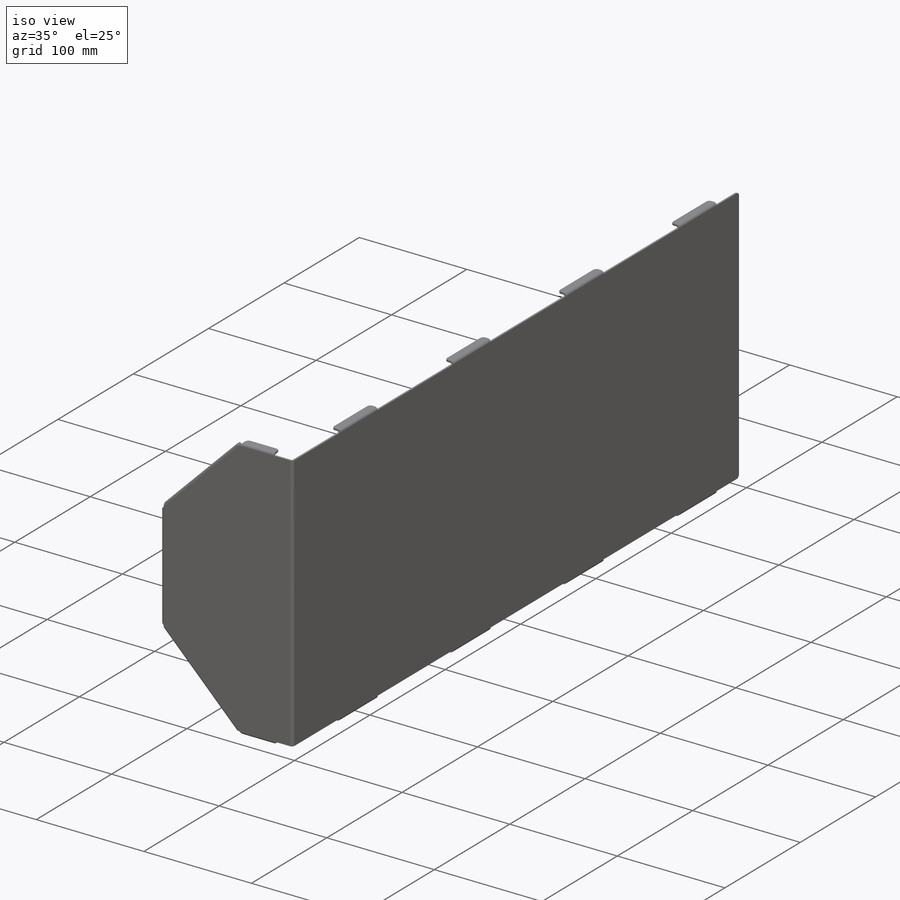
[diagram: iso view]
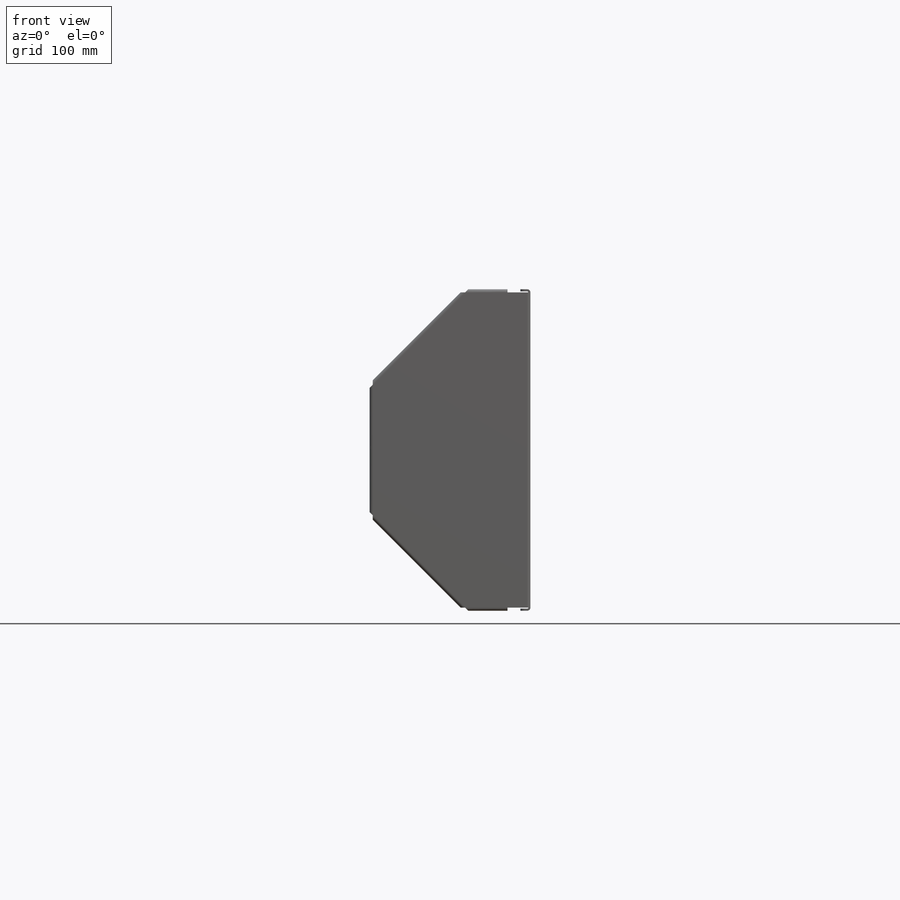
[diagram: front view]
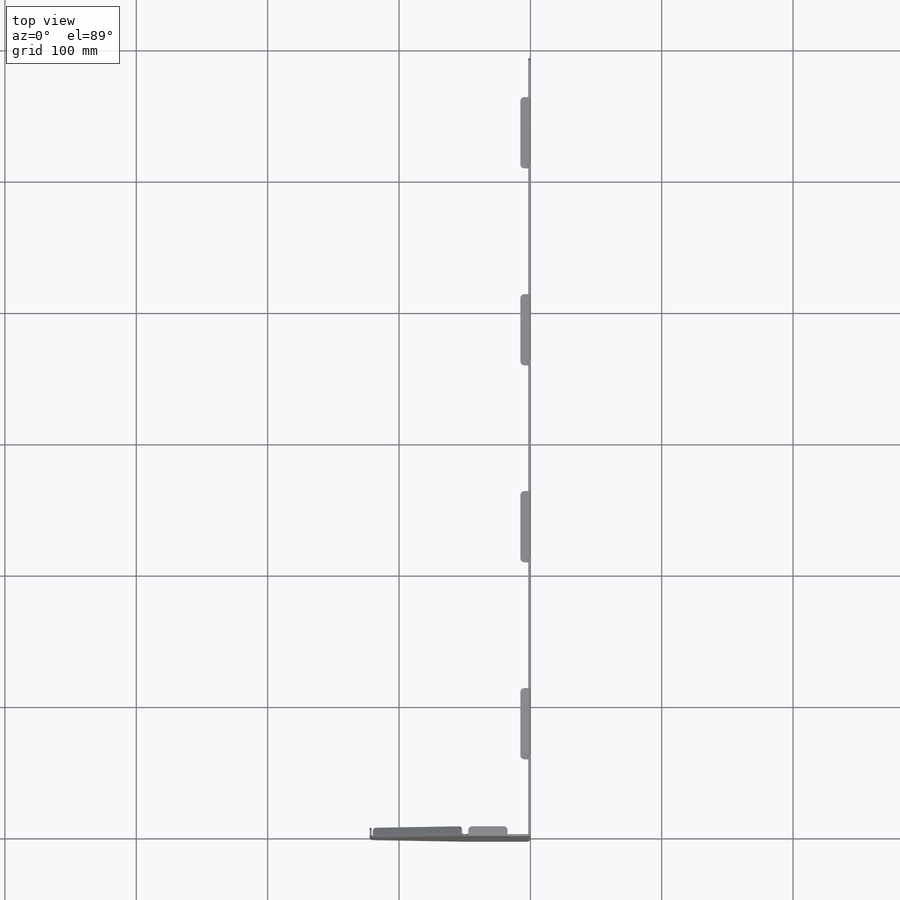
[diagram: top view]
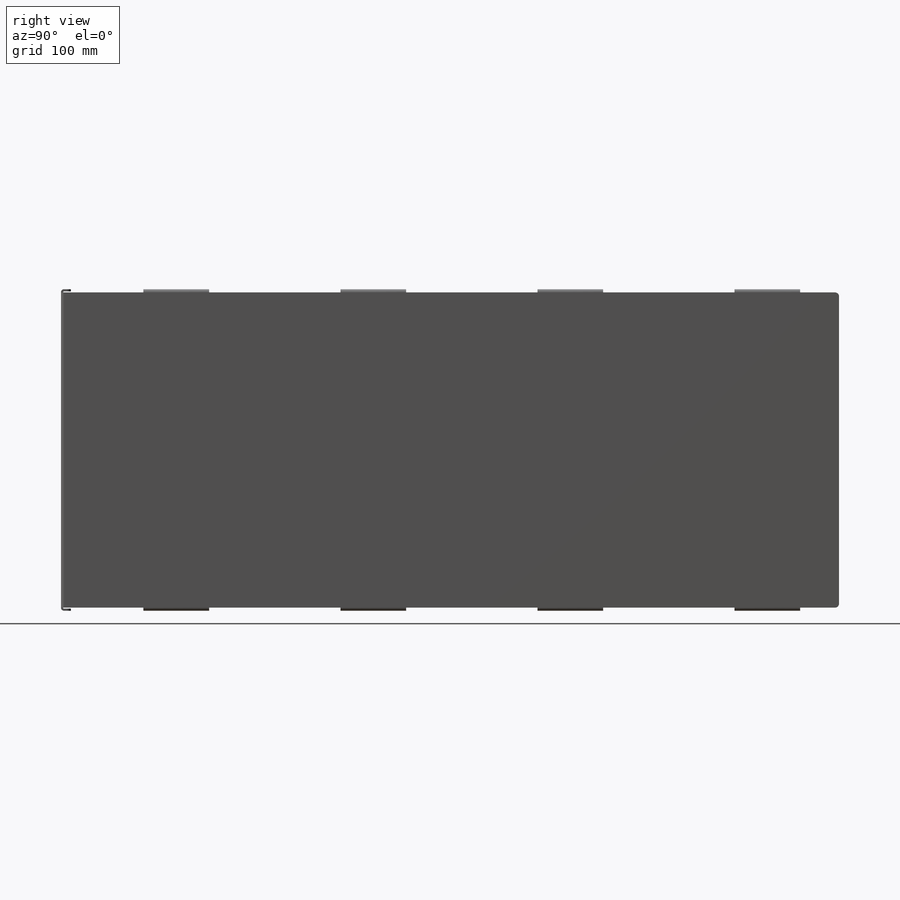
[diagram: right view]
SOLIDWORKS PART (.sldprt)
format: sldprt  version: not decoded by parser v0  size: 625,664 bytes
history: native  units: mm
features: sheet_metal_op x11, sketch x9, extrude x4, material x1, cut_extrude x1, plane x1, pattern_linear x1, mirror x1 + 15 further entries (+11 scaffold rows collapsed; 1 parser-record rows omitted)
feature tree (56):
  scaffold x11  (default folders/planes/origin — collapsed)
  material  "5052-O"
  sketch  "Sketch1"  dims[c1.D3=20.0mm c1.D4=70.0mm c1.D2=120.0mm c2.D4=150.0mm c2.D1=6.35mm c2.D2=3.175mm c2.D5=~7.247001mm c3.D4=0.5mm c3.D1=20.0mm]
  sheet_metal_op  "Sheet-Metal2"
  sheet_metal_op  "Base-Flange2"
  sketch  "Sketch22"  dims[c1.D1=0.8mm c1.D4=90.0deg c1.D5=12.0 c1.D8=~0.79375mm c1.D9=~0.79375mm c2.D1=0.8mm c2.D2=500.0mm c2.D3=0.0mm c2.D6=10.0mm c2.D7=300.0mm c2.D8=1.0mm]
  sheet_metal_op  "Sheet-Metal3"  Thickness=1.6mm
  sketch  "Sketch33"
  cut_extrude  "Cut-Extrude4"  [1 undecoded]
  plane  "Plane8"
  sketch  "Sketch70"  dims[c1.D1=6.0mm c2.D1=0.8mm c2.D4=90.0deg c2.D5=15.0 c2.D8=0.8mm c2.D9=0.8mm]
  extrude  "Miterbend17"  Depth=0.8mm
  extrude  "Miterbend18"  Depth=0.8mm
  extrude  "Miterbend19"  Depth=0.8mm
  extrude  "Miterbend20"  Depth=0.8mm Edge-Flange10=0
  sketch  "Sketch76"  dims[D1=25.0mm D2=50.0mm]
  sheet_metal_op  "EdgeBend10"
  pattern_linear  "LPattern1"  [2 undecoded]
  sheet_metal_op  "LinearPatternBend1"
  sheet_metal_op  "LinearPatternBend2"
  sheet_metal_op  "LinearPatternBend3"
  mirror  "Mirror3"
  sheet_metal_op  "MirrorBend2"
  sheet_metal_op  "MirrorBend3"
  sheet_metal_op  "MirrorBend4"
  sheet_metal_op  "MirrorBend5"
  "Flat-Pattern2"
  sketch  "Bend-Lines2"
  sketch  "Bounding-Box2"
  parser-record x1  (decoder bookkeeping rows leaked as tree rows — omitted from the tree; the rows remain in map.json)
  "Flatten-<Miterbend16>1"
  "Flatten-<Miterbend17>1"
  "Flatten-<Miterbend18>1"
  "Flatten-<Miterbend19>1"
  "Flatten-<Miterbend20>1"
  "Flatten-<EdgeBend10>1"
  "Flatten-<LinearPatternBend1>1"
  "Flatten-<LinearPatternBend2>1"
  "Flatten-<LinearPatternBend3>1"
  "Flatten-<MirrorBend2>1"
  "Flatten-<MirrorBend3>1"
  "Flatten-<MirrorBend4>1"
  "Flatten-<MirrorBend5>1"
  "Flat-Pattern3"
  sketch  "Bend-Lines3"
  sketch  "Bounding-Box3"
decode coverage: 9 of 27 modeling features carry decoded parameters; 15 rows unclassified (native names shown)
note: ~ marks probable driven/reference dimensions
note: 3 parameter values undecoded
note: suppression state not decoded; provenance and decode notes live in map.json
